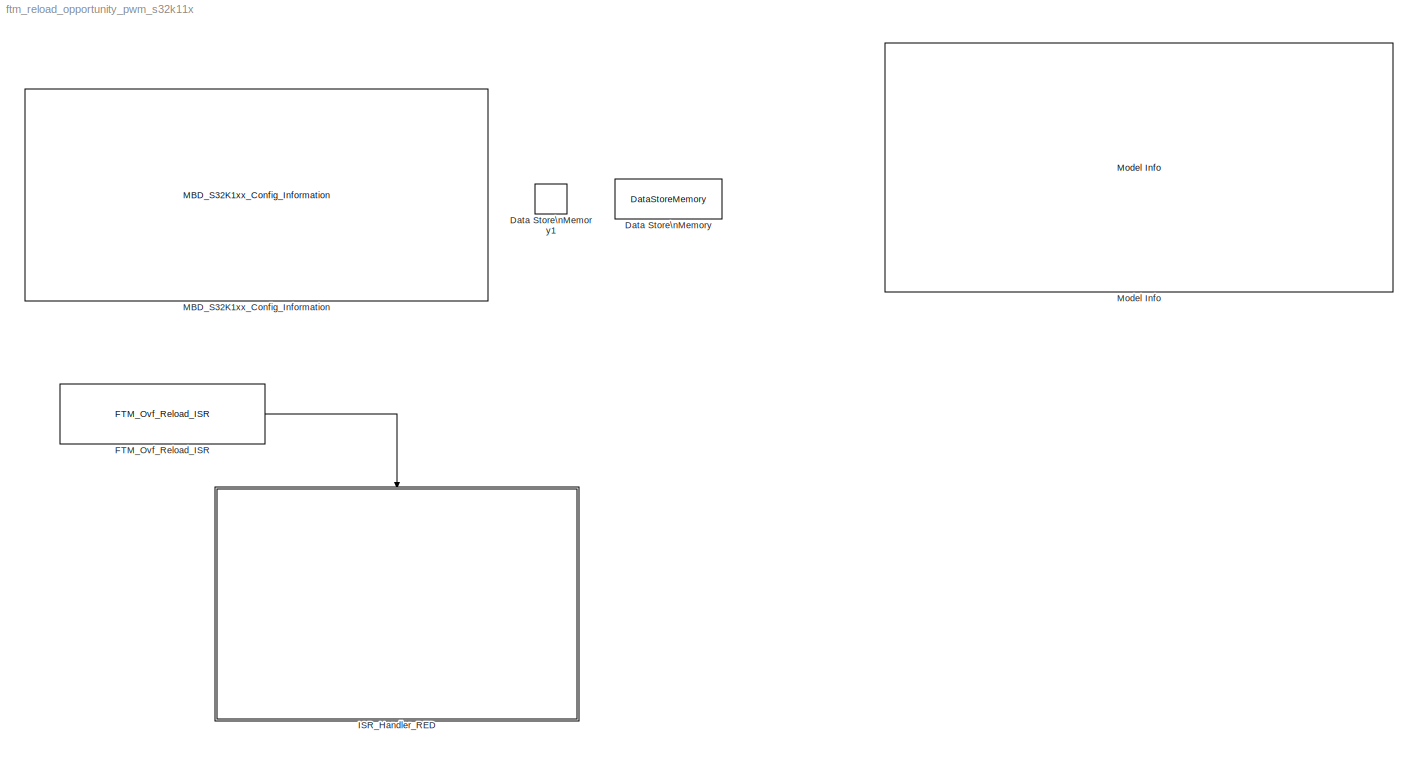
MODEL ftm_reload_opportunity_pwm_s32k11x
KIND model
CONFIG InitFcn = mbd_s32k_consistency_checks(bdroot(gcs));
BLOCK [DataStoreMemory] Data Store\nMemory
  DataStoreName = Blue_LED
  OutDataTypeStr = boolean
  ReadBeforeWriteMsg = warning
  SID = 2
  ShowAdditionalParam = off
  WriteAfterReadMsg = warning
  WriteAfterWriteMsg = warning
BLOCK [DataStoreMemory] Data Store\nMemory1
  InitialValue = 0.25
  OutDataTypeStr = single
  ReadBeforeWriteMsg = warning
  SID = 3
  ShowAdditionalParam = off
  WriteAfterReadMsg = warning
  WriteAfterWriteMsg = warning
BLOCK [Reference] FTM_Ovf_Reload_ISR  REF=mbd_s32k1xx_ec_toolbox/Motor Control Blocks/FTM Blocks/FTM_Ovf_Reload_ISR
  Ports = [0, 1]
  Priority = 10
  SID = 4
  SourceBlock = mbd_s32k1xx_ec_toolbox/Motor Control Blocks/FTM Blocks/FTM_Ovf_Reload_ISR
  SourceType = FTM_s32k_ovf_reload_isr
  ftmModule = 0
  mcuTargetUpdate = on
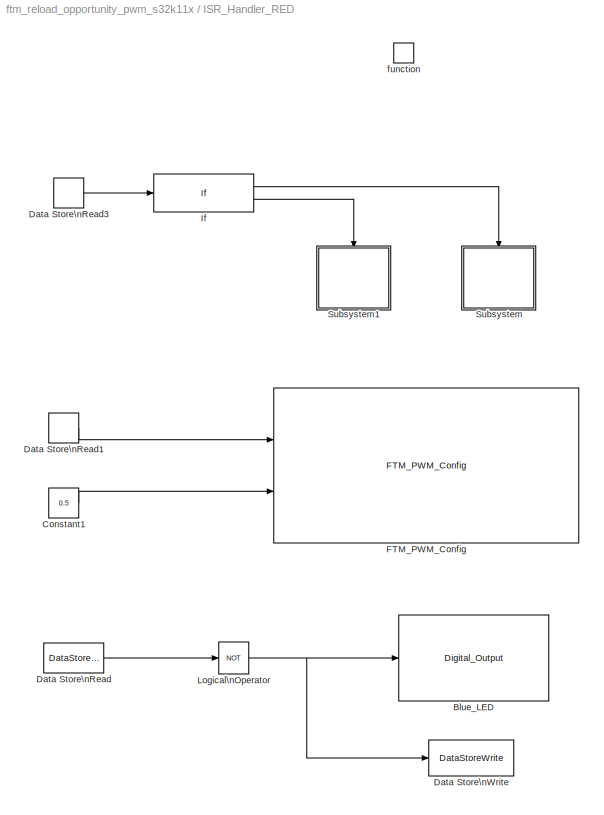
BLOCK [SubSystem] ISR_Handler_RED
  Ports = [0, 0, 0, 1]
  RequestExecContextInheritance = off
  SID = 5
  Variant = off
BLOCK [Reference] ISR_Handler_RED/Blue_LED  REF=mbd_s32k1xx_ec_toolbox/GPIO Blocks/Digital_Output
  Ports = [1]
  SID = 15
  SourceBlock = mbd_s32k1xx_ec_toolbox/GPIO Blocks/Digital_Output
  SourceType = gpio_s32k_output
  drive_strength = High
  gpio_pin = PTE8: [PTE8 | Port E I/O]
  init_val = Low
BLOCK [Constant] ISR_Handler_RED/Constant1
  OutDataTypeStr = single
  SID = 7
  Value = 0.5
BLOCK [DataStoreRead] ISR_Handler_RED/Data Store\nRead
  DataStoreName = Blue_LED
  Ports = [0, 1]
  SID = 8
BLOCK [DataStoreRead] ISR_Handler_RED/Data Store\nRead1
  Ports = [0, 1]
  SID = 9
BLOCK [DataStoreRead] ISR_Handler_RED/Data Store\nRead3
  Ports = [0, 1]
  SID = 10
BLOCK [DataStoreWrite] ISR_Handler_RED/Data Store\nWrite
  DataStoreName = Blue_LED
  Ports = [1]
  SID = 11
BLOCK [Reference] ISR_Handler_RED/FTM_PWM_Config  REF=mbd_s32k1xx_ec_toolbox/Motor Control Blocks/FTM Blocks/FTM_PWM_Config
  Ports = [2]
  Priority = 3
  SID = 12
  SourceBlock = mbd_s32k1xx_ec_toolbox/Motor Control Blocks/FTM Blocks/FTM_PWM_Config
  SourceType = FTM_s32k_pwm_config_block
  chTrigger0 = off
  chTrigger1 = off
  chTrigger2 = off
  chTrigger3 = off
  chTrigger4 = off
  chTrigger5 = off
  chTrigger6 = off
  chTrigger7 = off
  chan0En = off
  chan0Type = Independent
  chan2En = on
  chan2Type = Independent
  chan4En = off
  chan4Type = Independent
  chan6En = off
  chan6Type = Independent
  chnMatch0 = off
  chnMatch1 = off
  chnMatch2 = off
  chnMatch3 = off
  chnMatch4 = off
  chnMatch5 = off
  chnMatch6 = off
  chnMatch7 = off
  deadtimeNs = 0
  deadtimePrescaler = Divide by 1
  deadtimeTicks = 0
  deadtimeUnits = Nanoseconds
  dutyCycleCh0 = 0.25
  dutyCycleCh1 = 0.25
  dutyCycleCh2 = 0.25
  dutyCycleCh3 = 0.25
  dutyCycleCh4 = 0.25
  dutyCycleCh5 = 0.25
  dutyCycleCh6 = 0.25
  dutyCycleCh7 = 0.25
  dutyCycleSim = off
  fault_disen_0 = off
  fault_disen_1 = off
  fault_disen_2 = off
  fault_disen_3 = off
  fault_filter_0 = off
  fault_filter_1 = off
  fault_filter_2 = off
  fault_filter_3 = off
  fault_pin_0 = None
  fault_pin_1 = None
  fault_pin_2 = None
  fault_pin_3 = None
  fault_polarity_0 = Active High
  fault_polarity_1 = Active high
  fault_polarity_2 = Active high
  fault_polarity_3 = Active high
  ftmMode = Edge-Aligned PWM
  ftmModule = 0
  ftmPeriod = 20000
  ftmPrescaler = Divide by 2
  ftmPwmUnits = Hz
  ftmSourceClock = 40 MHz
  initTrigger = off
  mcuTargetUpdate = on
  outFrequency = 1000
  outputComplem0 = Main duplicated
  outputComplem2 = Main duplicated
  outputComplem4 = Main duplicated
  outputComplem6 = Main duplicated
  outputLevel0 = Low
  outputLevel1 = Low
  outputLevel2 = Low
  outputLevel3 = Low
  outputLevel4 = Low
  outputLevel5 = Low
  outputLevel6 = Low
  outputLevel7 = Low
  pinFtmCh0 = PTD15: [FTM0_CH0 | FTM Channel]
  pinFtmCh1 = PTC1: [FTM0_CH1 | FTM Channel]
  pinFtmCh2 = PTC2: [FTM0_CH2 | FTM Channel]
  pinFtmCh3 = PTC3: [FTM0_CH3 | FTM Channel]
  pinFtmCh4 = PTB4: [FTM0_CH4 | FTM Channel]
  pinFtmCh5 = None
  pinFtmCh6 = PTE8: [FTM0_CH6 | FTM Channel]
  pinFtmCh7 = None
  pinPolCh0 = Active Low
  pinPolCh1 = Active Low
  pinPolCh2 = Active Low
  pinPolCh3 = Active Low
  pinPolCh4 = Active Low
  pinPolCh5 = Active Low
  pinPolCh6 = Active Low
  pinPolCh7 = Active Low
  pwmFaultClearing = Fault control disabled
  pwmFaultFilterValue = 0
  pwmFaultInterrupt = off
  pwmFaultPinState = Safe Value
  pwmFaultPriority = 0
  pwmFaultProtection = off
  pwmSyncAutoClear = off
  pwmSyncCounterInitial = System Clock
  pwmSyncHwRouting = TRGMUX_FTM7
  pwmSyncInvert = System Clock
  pwmSyncMaxLoad = on
  pwmSyncMinLoad = off
  pwmSyncOutControl = System Clock
  pwmSyncOutMask = System Clock
  pwmSyncPoints = Update now
  pwmSyncTrg = Software trigger
  pwmSyncTrg0 = off
  pwmSyncTrg1 = off
  pwmSyncTrg2 = off
  reloadEnable = on
  reloadFrequency = 4
  reloadHCR = 0
  reloadHalfCycle = off
  reloadPriority = 2
  showAdvOpt = on
  startAfterInit = on
  swcontrol_enable = off
BLOCK [If] ISR_Handler_RED/If
  IfExpression = u1 == 0.25
  Ports = [1, 2]
  Priority = 2
  SID = 13
BLOCK [Logic] ISR_Handler_RED/Logical\nOperator
  AllPortsSameDT = off
  Operator = NOT
  OutDataTypeStr = boolean
  Ports = [1, 1]
  SID = 14
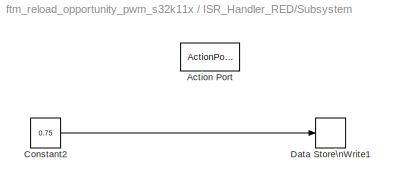
BLOCK [SubSystem] ISR_Handler_RED/Subsystem
  Ports = [0, 0, 0, 0, 0, 0, 0, 1]
  RequestExecContextInheritance = off
  SID = 16
  Variant = off
BLOCK [ActionPort] ISR_Handler_RED/Subsystem/Action Port
  SID = 17
BLOCK [Constant] ISR_Handler_RED/Subsystem/Constant2
  OutDataTypeStr = single
  SID = 18
  Value = 0.75
BLOCK [DataStoreWrite] ISR_Handler_RED/Subsystem/Data Store\nWrite1
  Ports = [1]
  SID = 19
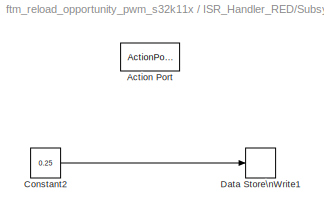
BLOCK [SubSystem] ISR_Handler_RED/Subsystem1
  Ports = [0, 0, 0, 0, 0, 0, 0, 1]
  RequestExecContextInheritance = off
  SID = 20
  Variant = off
BLOCK [ActionPort] ISR_Handler_RED/Subsystem1/Action Port
  SID = 21
BLOCK [Constant] ISR_Handler_RED/Subsystem1/Constant2
  OutDataTypeStr = single
  SID = 22
  Value = 0.25
BLOCK [DataStoreWrite] ISR_Handler_RED/Subsystem1/Data Store\nWrite1
  Ports = [1]
  SID = 23
BLOCK [TriggerPort] ISR_Handler_RED/function
  Ports = []
  SID = 6
  StatesWhenEnabling = held
  TriggerType = function-call
  VariantControl = Variant
BLOCK [Reference] MBD_S32K1xx_Config_Information  REF=mbd_s32k1xx_ec_toolbox/MBD_S32K1xx_Config_Information
  ADC_PcrCheckEnDis = on
  AMMCLIB_PcrCheckEnDis = on
  CMP_PcrCheckEnDis = on
  CSEc_PcrCheckEnDis = on
  ConfigParams_PcrCheckEnDis = on
  FM_PcrCheckEnDis = on
  FTM_Dual_Edge_Inputs_PcrCheckEnDis = on
  FTM_Hall_Sensor_Inputs_PcrCheckEnDis = on
  FTM_Input_Edge_Inputs_PcrCheckEnDis = on
  FTM_PWM_PcrCheckEnDis = on
  FTM_Quadrature_Inputs_PcrCheckEnDis = on
  FlexCAN_PcrCheckEnDis = on
  FlexIO_PcrCheckEnDis = on
  GPIO_InputPcrCheckEnDis = on
  GPIO_OutputPcrCheckEnDis = on
  LIN_PcrCheckEnDis = on
  LPI2C_PcrCheckEnDis = on
  LPSPI_PcrCheckEnDis = on
  LPTMR_PcrCheckEnDis = on
  LPUART_PcrCheckEnDis = on
  ModelRef_PcrCheckEnDis = on
  PDB0_PcrCheckEnDis = on
  PIT_PcrCheckEnDis = on
  Ports = []
  Profile_PcrCheckEnDis = on
  RTC_PcrCheckEnDis = on
  SBC_PcrCheckEnDis = on
  SID = 1
  SourceBlock = mbd_s32k1xx_ec_toolbox/MBD_S32K1xx_Config_Information
  SourceType = MBDTBX_EC_S32K
  WDOG_PcrCheckEnDis = on
  config_params = []
  disp_str = Target : S32K144-64KB_SRAM\nPackage : 100-pin\nSystem clock : 80 MHz\nXTAL clock : External 8 MHz\nCompiler : IAR\nTarget Type : FLASH\nDownload Code after build : off\nStep Tick Interrupt Priority : 15
  ds_import_enable = on
  eDMA_PcrCheckEnDis = on
  gcc_target_assemble_opts = -mcpu=cortex-m0plus -mthumb -g
  gcc_target_compile_opts = -mcpu=cortex-m0plus -mthumb -O1 -g -gstrict-dwarf
  gcc_target_default_lcf = on
  gcc_target_link_opts = -mcpu=cortex-m0plus -mthumb
  gcc_target_user_lcf = S32K118_25_flash.ld
  ghs_target_assemble_opts = -mcpu=cortexm0plus -mthumb -fsoft --gnu_asm
  ghs_target_compile_opts = -mcpu=cortexm0plus -mthumb -fsoft -Ogeneral -Wundef -Wimplicit-int -Wshadow -Wtrigraphs --no_commons --gnu_asm -gnu99 -gdwarf-2 -G
  ghs_target_default_lcf = on
  ghs_target_link_opts = -mcpu=cortexm0plus -mthumb -fsoft
  ghs_target_user_lcf = S32K118_25_flash.ld
  iar_target_assemble_opts = --thumb
  iar_target_compile_opts = --thumb -Ol -e --debug --dlib_config normal
  iar_target_default_lcf = on
  iar_target_link_opts = --no_exceptions --vfe --inline
  iar_target_user_lcf = S32K118_25_flash.icf
  mbdt_ver = 0
  mcu_steptick_prio = 0
  mcu_steptick_timer = LPIT Channel 0
  mcu_system_clock_freq = 40
  mcu_target_name = S32K118
  mcu_target_package = 64-LQFP
  mcu_target_sram_size = 25KB
  mcu_xtal_freq = External 40
  pil_download_enable = off
  pil_download_rate = 57600
  pil_opensda_drive = Custom
  pil_opensda_drive_custom = D
  pil_uart_instance = 0
  pil_uart_rx = PTB0: [LPUART0_RX | Receive]
  pil_uart_tx = PTB1: [LPUART0_TX | Transmit]
  rbl_com_port = Custom
  rbl_com_port_custom = COM1
  rbl_download_enable = on
  rbl_download_interface = OpenSDA
  rbl_restart_request = off
  rbl_start_delay = 5000
  target_compiler = GCC
  target_memory = FLASH
BLOCK [Reference] Model Info  REF=simulink/Model-Wide\nUtilities/Model Info
  DisplayStringWithTags = Model Name: %<ModelName>\n\nDescription: %<Description>
  Frame = off
  HorizontalTextAlignment = Left
  LeftAlignmentValue = 0.02
  MaskDisplayString = Model Name: ftm_reload_opportunity_pwm_s32k11x\\n\\nDescription: This sample shows how to use FTM module to change duty cycle every 4 reload opportunities\\non S32K118EVB:\\nConnect pin J2.1 (PTC2)   to the scope to watch FTM0 channel 2 output\\nConnect pin J2.1 (PTC1)   to the scope to watch FTM0 channel 3 output\\n\\nAt every 4 reload opportunities  the duty cycle is changed between 25-75% on th...<+36ch>
  Ports = []
  SID = 26
  SourceBlock = simulink/Model-Wide\nUtilities/Model Info
  SourceProductBaseCode = SL
  SourceProductName = Simulink
  SourceType = CMBlock
LINE FTM_Ovf_Reload_ISR:1 -> ISR_Handler_RED:trigger
LINE ISR_Handler_RED/Constant1:1 -> ISR_Handler_RED/FTM_PWM_Config:2
LINE ISR_Handler_RED/Data Store\nRead1:1 -> ISR_Handler_RED/FTM_PWM_Config:1
LINE ISR_Handler_RED/Data Store\nRead3:1 -> ISR_Handler_RED/If:1
LINE ISR_Handler_RED/Data Store\nRead:1 -> ISR_Handler_RED/Logical\nOperator:1
LINE ISR_Handler_RED/If:1 -> ISR_Handler_RED/Subsystem:ifaction
LINE ISR_Handler_RED/If:2 -> ISR_Handler_RED/Subsystem1:ifaction
NET ISR_Handler_RED/Logical\nOperator:1 -> ISR_Handler_RED/Blue_LED:1, ISR_Handler_RED/Data Store\nWrite:1
LINE ISR_Handler_RED/Subsystem/Constant2:1 -> ISR_Handler_RED/Subsystem/Data Store\nWrite1:1
LINE ISR_Handler_RED/Subsystem1/Constant2:1 -> ISR_Handler_RED/Subsystem1/Data Store\nWrite1:1
note: NET lines group one-source signal fan-out (src -> all destinations, sorted); 1:1 wires keep LINE
